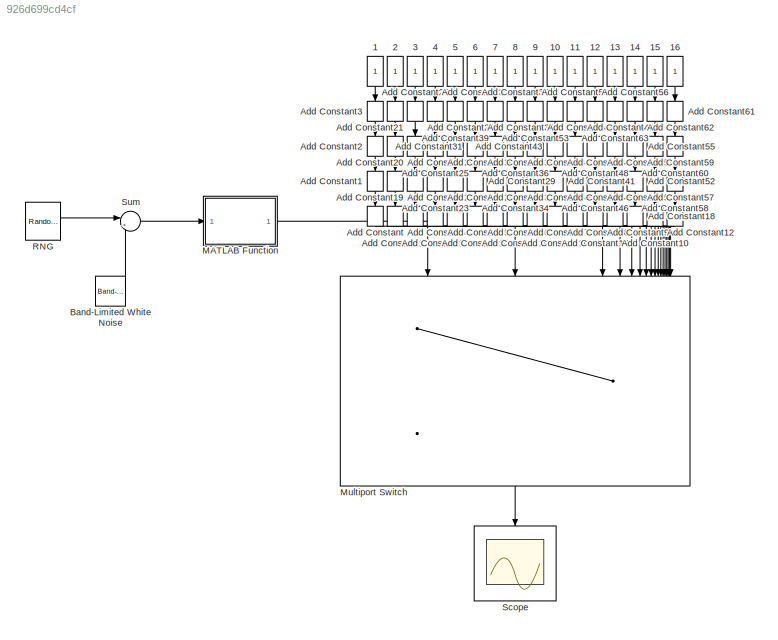
MODEL slx_926d699cd4cf
KIND model
CONFIG AbsTol = auto
CONFIG EnableMultiTasking = off
CONFIG FixedStep = auto
CONFIG MaxStep = auto
CONFIG MinStep = auto
CONFIG RelTol = 1e-3
CONFIG SampleTimeConstraint = Unconstrained
CONFIG SolverName = VariableStepAuto
CONFIG StartTime = 0.0
CONFIG StopTime = 10.0
BLOCK [Constant] 1
  NameLocation = top
BLOCK [Constant] 10
  NameLocation = top
BLOCK [Constant] 11
  NameLocation = top
BLOCK [Constant] 12
  NameLocation = top
BLOCK [Constant] 13
  NameLocation = top
BLOCK [Constant] 14
  NameLocation = top
BLOCK [Constant] 15
  NameLocation = top
BLOCK [Constant] 16
  NameLocation = top
BLOCK [Constant] 2
  NameLocation = top
BLOCK [Constant] 3
  NameLocation = top
BLOCK [Constant] 4
  NameLocation = top
BLOCK [Constant] 5
  NameLocation = top
BLOCK [Constant] 6
  NameLocation = top
BLOCK [Constant] 7
  NameLocation = top
BLOCK [Constant] 8
  NameLocation = top
BLOCK [Constant] 9
  NameLocation = top
BLOCK [Bias] Add Constant
  Bias = 1
  NameLocation = left
  SaturateOnIntegerOverflow = off
BLOCK [Bias] Add Constant1
  Bias = 1
  NameLocation = left
  SaturateOnIntegerOverflow = off
BLOCK [Bias] Add Constant10
  Bias = 1
  NameLocation = left
  SaturateOnIntegerOverflow = off
BLOCK [Bias] Add Constant11
  Bias = 2
  NameLocation = left
  SaturateOnIntegerOverflow = off
BLOCK [Bias] Add Constant12
  Bias = 2
  NameLocation = left
  SaturateOnIntegerOverflow = off
BLOCK [Bias] Add Constant13
  Bias = 2
  NameLocation = left
  SaturateOnIntegerOverflow = off
BLOCK [Bias] Add Constant14
  Bias = 2
  NameLocation = left
  SaturateOnIntegerOverflow = off
BLOCK [Bias] Add Constant15
  Bias = 2
  NameLocation = left
  SaturateOnIntegerOverflow = off
BLOCK [Bias] Add Constant16
  Bias = 2
  NameLocation = left
  SaturateOnIntegerOverflow = off
BLOCK [Bias] Add Constant17
  Bias = 2
  NameLocation = left
  SaturateOnIntegerOverflow = off
BLOCK [Bias] Add Constant18
  Bias = 2
  NameLocation = left
  SaturateOnIntegerOverflow = off
BLOCK [Bias] Add Constant19
  Bias = 1
  NameLocation = left
  SaturateOnIntegerOverflow = off
BLOCK [Bias] Add Constant2
  Bias = 1
  NameLocation = left
  SaturateOnIntegerOverflow = off
BLOCK [Bias] Add Constant20
  Bias = 1
  NameLocation = left
  SaturateOnIntegerOverflow = off
BLOCK [Bias] Add Constant21
  Bias = 2
  NameLocation = left
  SaturateOnIntegerOverflow = off
BLOCK [Bias] Add Constant22
  Bias = 2
  NameLocation = left
  SaturateOnIntegerOverflow = off
BLOCK [Bias] Add Constant23
  Bias = 2
  NameLocation = left
  SaturateOnIntegerOverflow = off
BLOCK [Bias] Add Constant24
  Bias = 1
  NameLocation = left
  SaturateOnIntegerOverflow = off
BLOCK [Bias] Add Constant25
  Bias = 1
  NameLocation = left
  SaturateOnIntegerOverflow = off
BLOCK [Bias] Add Constant26
  Bias = 2
  NameLocation = left
  SaturateOnIntegerOverflow = off
BLOCK [Bias] Add Constant27
  Bias = 2
  NameLocation = left
  SaturateOnIntegerOverflow = off
BLOCK [Bias] Add Constant28
  Bias = 2
  NameLocation = left
  SaturateOnIntegerOverflow = off
BLOCK [Bias] Add Constant29
  Bias = 2
  NameLocation = left
  SaturateOnIntegerOverflow = off
BLOCK [Bias] Add Constant3
  Bias = 2
  NameLocation = left
  SaturateOnIntegerOverflow = off
BLOCK [Bias] Add Constant30
  Bias = 2
  NameLocation = left
  SaturateOnIntegerOverflow = off
BLOCK [Bias] Add Constant31
  Bias = 2
  NameLocation = left
  SaturateOnIntegerOverflow = off
BLOCK [Bias] Add Constant32
  Bias = 2
  NameLocation = left
  SaturateOnIntegerOverflow = off
BLOCK [Bias] Add Constant33
  Bias = 2
  NameLocation = left
  SaturateOnIntegerOverflow = off
BLOCK [Bias] Add Constant34
  Bias = 2
  NameLocation = left
  SaturateOnIntegerOverflow = off
BLOCK [Bias] Add Constant35
  Bias = 2
  NameLocation = left
  SaturateOnIntegerOverflow = off
BLOCK [Bias] Add Constant36
  Bias = 2
  NameLocation = left
  SaturateOnIntegerOverflow = off
BLOCK [Bias] Add Constant37
  Bias = 2
  NameLocation = left
  SaturateOnIntegerOverflow = off
BLOCK [Bias] Add Constant38
  Bias = 2
  NameLocation = left
  SaturateOnIntegerOverflow = off
BLOCK [Bias] Add Constant39
  Bias = 2
  NameLocation = left
  SaturateOnIntegerOverflow = off
BLOCK [Bias] Add Constant4
  Bias = 1
  NameLocation = left
  SaturateOnIntegerOverflow = off
BLOCK [Bias] Add Constant40
  Bias = 1
  NameLocation = left
  SaturateOnIntegerOverflow = off
BLOCK [Bias] Add Constant41
  Bias = 1
  NameLocation = left
  SaturateOnIntegerOverflow = off
BLOCK [Bias] Add Constant42
  Bias = 1
  NameLocation = left
  SaturateOnIntegerOverflow = off
BLOCK [Bias] Add Constant43
  Bias = 1
  NameLocation = left
  SaturateOnIntegerOverflow = off
BLOCK [Bias] Add Constant44
  Bias = 3
  NameLocation = left
  SaturateOnIntegerOverflow = off
BLOCK [Bias] Add Constant45
  Bias = 2
  NameLocation = left
  SaturateOnIntegerOverflow = off
BLOCK [Bias] Add Constant46
  Bias = 2
  NameLocation = left
  SaturateOnIntegerOverflow = off
BLOCK [Bias] Add Constant47
  Bias = 1
  NameLocation = left
  SaturateOnIntegerOverflow = off
BLOCK [Bias] Add Constant48
  Bias = 1
  NameLocation = left
  SaturateOnIntegerOverflow = off
BLOCK [Bias] Add Constant49
  Bias = 3
  NameLocation = left
  SaturateOnIntegerOverflow = off
BLOCK [Bias] Add Constant5
  Bias = 1
  NameLocation = left
  SaturateOnIntegerOverflow = off
BLOCK [Bias] Add Constant50
  Bias = 3
  NameLocation = left
  SaturateOnIntegerOverflow = off
BLOCK [Bias] Add Constant51
  Bias = 2
  NameLocation = left
  SaturateOnIntegerOverflow = off
BLOCK [Bias] Add Constant52
  Bias = 2
  NameLocation = left
  SaturateOnIntegerOverflow = off
BLOCK [Bias] Add Constant53
  Bias = 3
  NameLocation = left
  SaturateOnIntegerOverflow = off
BLOCK [Bias] Add Constant54
  Bias = 2
  NameLocation = left
  SaturateOnIntegerOverflow = off
BLOCK [Bias] Add Constant55
  Bias = 2
  NameLocation = left
  SaturateOnIntegerOverflow = off
BLOCK [Bias] Add Constant56
  Bias = 3
  NameLocation = left
  SaturateOnIntegerOverflow = off
BLOCK [Bias] Add Constant57
  Bias = 1
  NameLocation = left
  SaturateOnIntegerOverflow = off
BLOCK [Bias] Add Constant58
  Bias = 1
  NameLocation = left
  SaturateOnIntegerOverflow = off
BLOCK [Bias] Add Constant59
  Bias = 2
  NameLocation = left
  SaturateOnIntegerOverflow = off
BLOCK [Bias] Add Constant6
  Bias = 1
  NameLocation = left
  SaturateOnIntegerOverflow = off
BLOCK [Bias] Add Constant60
  Bias = 2
  NameLocation = left
  SaturateOnIntegerOverflow = off
BLOCK [Bias] Add Constant61
  Bias = 3
  NameLocation = left
  SaturateOnIntegerOverflow = off
BLOCK [Bias] Add Constant62
  Bias = 3
  NameLocation = left
  SaturateOnIntegerOverflow = off
BLOCK [Bias] Add Constant63
  Bias = 3
  NameLocation = left
  SaturateOnIntegerOverflow = off
BLOCK [Bias] Add Constant7
  Bias = 1
  NameLocation = left
  SaturateOnIntegerOverflow = off
BLOCK [Bias] Add Constant8
  Bias = 1
  NameLocation = left
  SaturateOnIntegerOverflow = off
BLOCK [Bias] Add Constant9
  Bias = 1
  NameLocation = left
  SaturateOnIntegerOverflow = off
BLOCK [Reference] Band-Limited White Noise  REF=simulink/Sources/Band-Limited
White Noise
  SourceBlock = simulink/Sources/Band-Limited\nWhite Noise
  SourceType = Band-Limited White Noise.
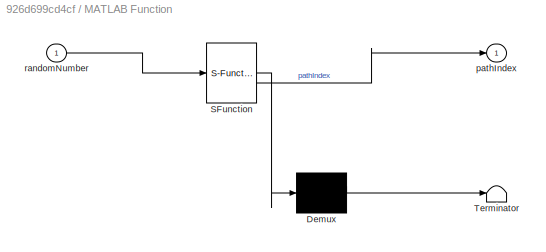
BLOCK [SubSystem] MATLAB Function
  ErrorFcn = Stateflow.Translate.translate
  PermitHierarchicalResolution = ExplicitOnly
  SFBlockType = MATLAB Function
  TreatAsAtomicUnit = on
BLOCK [Demux] MATLAB Function/ Demux 
  Outputs = 1
BLOCK [S-Function] MATLAB Function/ SFunction 
  EnableBusSupport = on
  FunctionName = sf_sfun
  PortCounts = [1 2]
  SFcnIsStateOwnerBlock = off
  SFunctionDeploymentMode = off
  Tag = Stateflow S-Function 2
BLOCK [Terminator] MATLAB Function/ Terminator 
BLOCK [Outport] MATLAB Function/pathIndex
BLOCK [Inport] MATLAB Function/randomNumber
BLOCK [MultiPortSwitch] Multiport Switch
  InputSameDT = off
  Inputs = 16
  NameLocation = left
  OutDataTypeStr = double
  OutMax = 10
  OutMin = 6
  SaturateOnIntegerOverflow = off
BLOCK [Reference] RNG  REF=dspobslib/Random
Source
  SourceBlock = dspobslib/Random\nSource
  SourceType = Random Source Obsolete
  UserDataPersistent = on
BLOCK [Scope] Scope
  Floating = off
  NumInputPorts = 1
  ScopeSpecificationString = Simulink.scopes.TimeScopeBlockCfg('CurrentConfiguration', extmgr.ConfigurationSet(extmgr.Configuration('Core','General UI',true),extmgr.Configuration('Core','Source UI',true),extmgr.Configuration('Sources','WiredSimulink',true),extmgr.Configuration('Visuals','Time Domain',true,'SerializedDisplays',{struct('MinYLimReal','5.5','MaxYLimReal','10.5','YLabelReal','','MinYLimMag','5.5','MaxYLimMag','10....<+1450ch>
BLOCK [Sum] Sum
  Inputs = |++
LINE 10:1 -> Add Constant44:1
LINE 11:1 -> Add Constant50:1
LINE 12:1 -> Add Constant49:1
LINE 13:1 -> Add Constant63:1
LINE 14:1 -> Add Constant56:1
LINE 15:1 -> Add Constant62:1
LINE 16:1 -> Add Constant61:1
LINE 1:1 -> Add Constant3:1
LINE 2:1 -> Add Constant21:1
LINE 3:1 -> Add Constant27:1
LINE 4:1 -> Add Constant26:1
LINE 5:1 -> Add Constant39:1
LINE 6:1 -> Add Constant32:1
LINE 7:1 -> Add Constant38:1
LINE 8:1 -> Add Constant37:1
LINE 9:1 -> Add Constant53:1
LINE Add Constant10:1 -> Multiport Switch:16
LINE Add Constant11:1 -> Multiport Switch:3
LINE Add Constant12:1 -> Multiport Switch:17
LINE Add Constant13:1 -> Multiport Switch:5
LINE Add Constant14:1 -> Multiport Switch:7
LINE Add Constant15:1 -> Multiport Switch:9
LINE Add Constant16:1 -> Multiport Switch:11
LINE Add Constant17:1 -> Multiport Switch:13
LINE Add Constant18:1 -> Multiport Switch:15
LINE Add Constant19:1 -> Add Constant11:1
LINE Add Constant1:1 -> Add Constant:1
LINE Add Constant20:1 -> Add Constant19:1
LINE Add Constant21:1 -> Add Constant20:1
LINE Add Constant22:1 -> Add Constant4:1
LINE Add Constant23:1 -> Add Constant13:1
LINE Add Constant24:1 -> Add Constant22:1
LINE Add Constant25:1 -> Add Constant23:1
LINE Add Constant26:1 -> Add Constant25:1
LINE Add Constant27:1 -> Add Constant24:1
LINE Add Constant28:1 -> Add Constant5:1
LINE Add Constant29:1 -> Add Constant14:1
LINE Add Constant2:1 -> Add Constant1:1
LINE Add Constant30:1 -> Add Constant28:1
LINE Add Constant31:1 -> Add Constant29:1
LINE Add Constant32:1 -> Add Constant31:1
LINE Add Constant33:1 -> Add Constant6:1
LINE Add Constant34:1 -> Add Constant15:1
LINE Add Constant35:1 -> Add Constant33:1
LINE Add Constant36:1 -> Add Constant34:1
LINE Add Constant37:1 -> Add Constant36:1
LINE Add Constant38:1 -> Add Constant35:1
LINE Add Constant39:1 -> Add Constant30:1
LINE Add Constant3:1 -> Add Constant2:1
LINE Add Constant40:1 -> Add Constant7:1
LINE Add Constant41:1 -> Add Constant16:1
LINE Add Constant42:1 -> Add Constant40:1
LINE Add Constant43:1 -> Add Constant41:1
LINE Add Constant44:1 -> Add Constant43:1
LINE Add Constant45:1 -> Add Constant8:1
LINE Add Constant46:1 -> Add Constant17:1
LINE Add Constant47:1 -> Add Constant45:1
LINE Add Constant48:1 -> Add Constant46:1
LINE Add Constant49:1 -> Add Constant48:1
LINE Add Constant4:1 -> Multiport Switch:4
LINE Add Constant50:1 -> Add Constant47:1
LINE Add Constant51:1 -> Add Constant9:1
LINE Add Constant52:1 -> Add Constant18:1
LINE Add Constant53:1 -> Add Constant42:1
LINE Add Constant54:1 -> Add Constant51:1
LINE Add Constant55:1 -> Add Constant52:1
LINE Add Constant56:1 -> Add Constant55:1
LINE Add Constant57:1 -> Add Constant10:1
LINE Add Constant58:1 -> Add Constant12:1
LINE Add Constant59:1 -> Add Constant57:1
LINE Add Constant5:1 -> Multiport Switch:6
LINE Add Constant60:1 -> Add Constant58:1
LINE Add Constant61:1 -> Add Constant60:1
LINE Add Constant62:1 -> Add Constant59:1
LINE Add Constant63:1 -> Add Constant54:1
LINE Add Constant6:1 -> Multiport Switch:8
LINE Add Constant7:1 -> Multiport Switch:10
LINE Add Constant8:1 -> Multiport Switch:12
LINE Add Constant9:1 -> Multiport Switch:14
LINE Add Constant:1 -> Multiport Switch:2
LINE Band-Limited White Noise:1 -> Sum:2
LINE MATLAB Function:1 -> Multiport Switch:1
LINE Multiport Switch:1 -> Scope:1
LINE RNG:1 -> Sum:1
LINE Sum:1 -> MATLAB Function:1
CHART MATLAB Function states=1 transitions=1
  STATE_LABEL 'eML_blk_kernel()'
  STATE_LABEL 'SCRIPT:\nfunction pathIndex = selectPath(randomNumber) %#codegen\n    % Clamp the random number to stay within [0, 1]\n    randomNumber = max(0, min(randomNumber, 1));\n    \n    % Initialize pathIndex to zero (or any valid default value)\n    pathIndex = int32(0);\n\n    % Check the value of randomNumber and assign pathIndex accordingly\n    if randomNumber >= 0 && randomNumber <= 0.0252\n        pathIndex...<+1694ch>'
CHART  states=0 transitions=0
